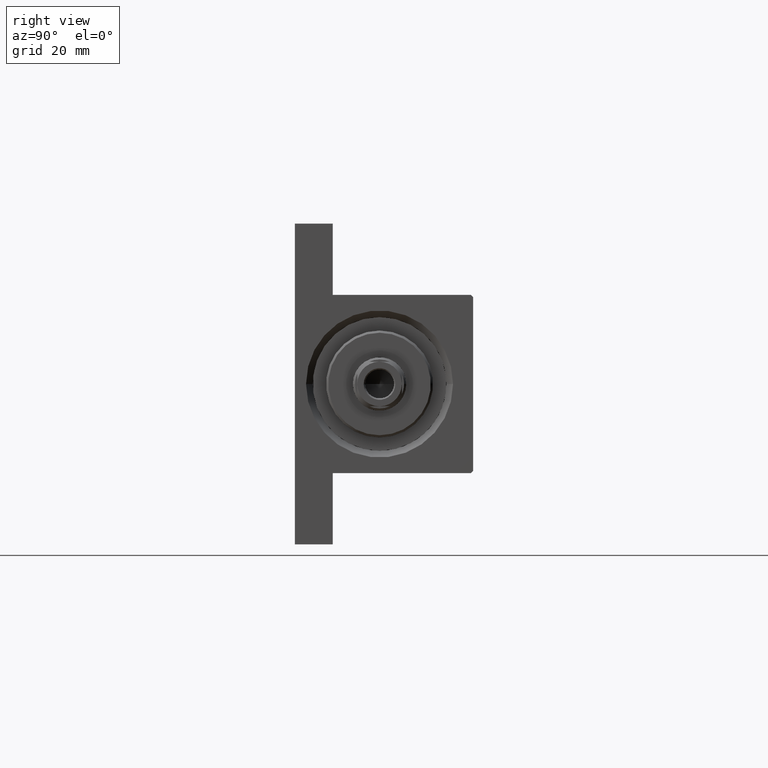
[diagram: clean part render]
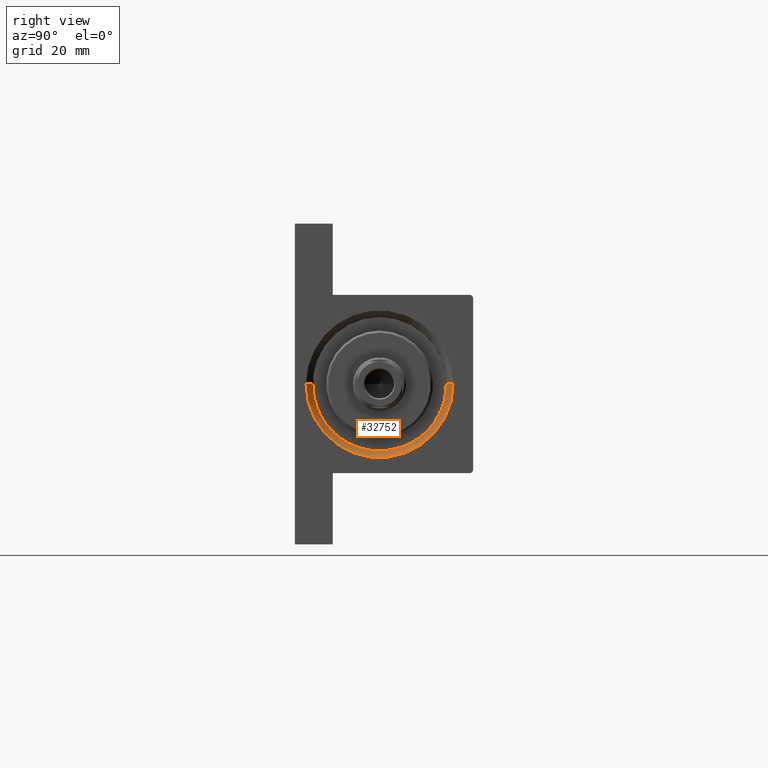
[diagram: same view with one face highlighted and labeled with its STEP entity id]
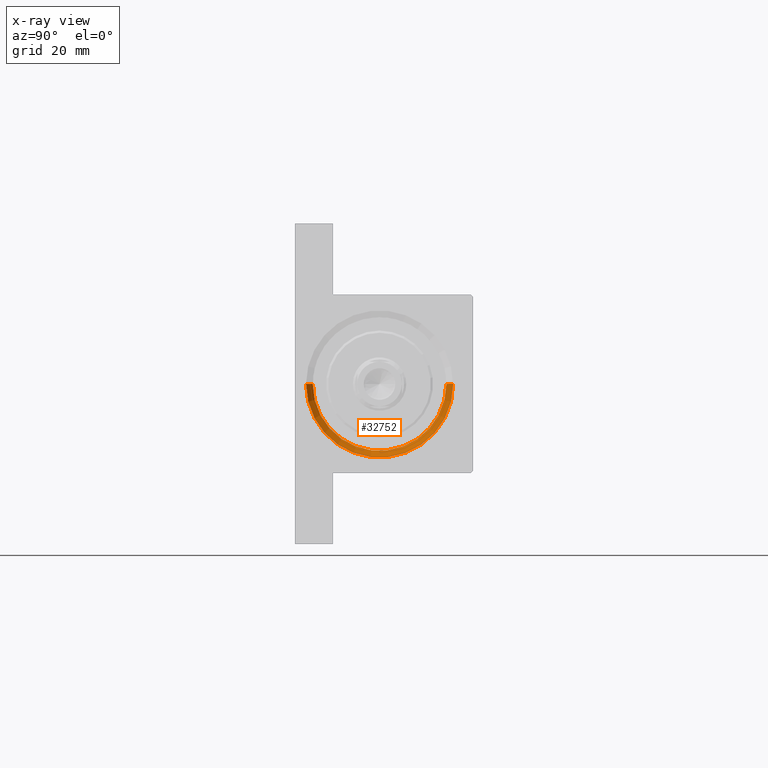
[diagram: x-ray of the same camera — body ghosted, the highlighted face saturated]
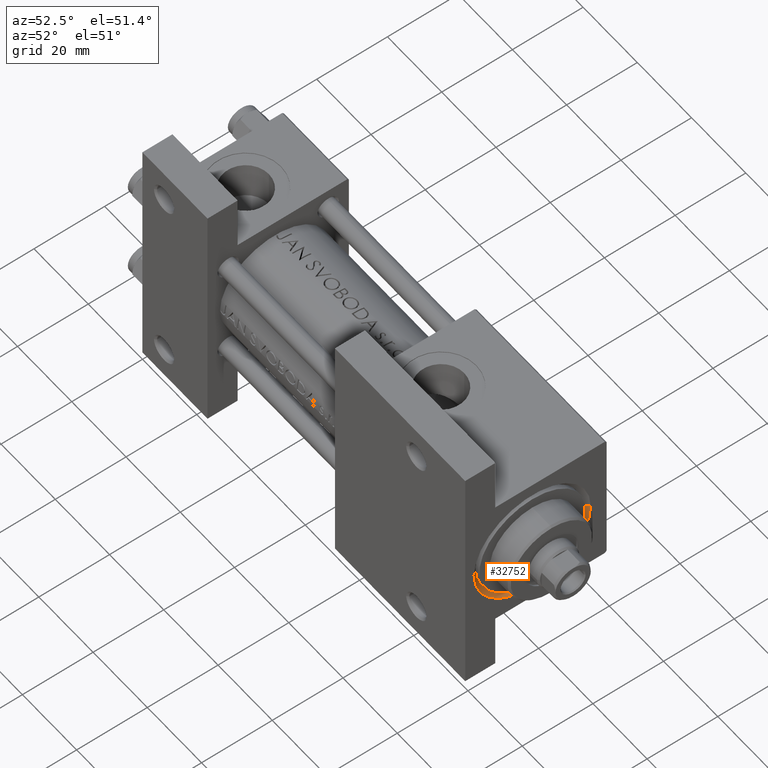
[diagram: same view with one face highlighted and labeled with its STEP entity id]
A machine part, right view. The second image highlights one B-rep face of the part: STEP entity #32752.
The next image is the same camera in x-ray: the body ghosted, the highlighted face saturated — about 0% of this face is hidden behind the body in this view.
A second angle (auxiliary view) of the same face is appended — the face is thin or edge-on in the first view.
In plain terms, the highlighted conical surface has half-angle 45 deg.
Its self-contained STEP definition (entity closure, byte-faithful):
#1738 = CIRCLE ( 'NONE', #18660, 15.00000000000000000 ) ;
#2271 = VECTOR ( 'NONE', #32939, 1000.000000000000114 ) ;
#3576 = CARTESIAN_POINT ( 'NONE',  ( 119.0000000000000142, 0.000000000000000000, -1.000000000000000888 ) ) ;
#6787 = VERTEX_POINT ( 'NONE', #36752 ) ;
#8083 = CARTESIAN_POINT ( 'NONE',  ( 117.5000000000000000, 0.000000000000000000, -1.000000000000000888 ) ) ;
#9092 = EDGE_LOOP ( 'NONE', ( #34508, #41942, #28365, #33973 ) ) ;
#9560 = FACE_OUTER_BOUND ( 'NONE', #9092, .T. ) ;
#12653 = CARTESIAN_POINT ( 'NONE',  ( 119.0000000000000142, 0.000000000000000000, -17.50000000000001421 ) ) ;
#15601 = DIRECTION ( 'NONE',  ( -1.000000000000000000, -0.000000000000000000, -0.000000000000000000 ) ) ;
#16687 = VERTEX_POINT ( 'NONE', #36266 ) ;
#16839 = CIRCLE ( 'NONE', #32916, 16.50000000000001421 ) ;
#17480 = DIRECTION ( 'NONE',  ( 1.000000000000000000, 0.000000000000000000, 0.000000000000000000 ) ) ;
#17710 = DIRECTION ( 'NONE',  ( 0.7071067811865474617, 0.000000000000000000, -0.7071067811865474617 ) ) ;
#18457 = EDGE_CURVE ( 'NONE', #39702, #6787, #1738, .T. ) ;
#18660 = AXIS2_PLACEMENT_3D ( 'NONE', #8083, #22757, #26585 ) ;
#20154 = VERTEX_POINT ( 'NONE', #12653 ) ;
#21545 = CONICAL_SURFACE ( 'NONE', #41440, 15.00000000000000000, 0.7853981633974482790 ) ;
#21910 = LINE ( 'NONE', #26458, #2271 ) ;
#21938 = EDGE_CURVE ( 'NONE', #39702, #20154, #43629, .T. ) ;
#22757 = DIRECTION ( 'NONE',  ( 1.000000000000000000, 0.000000000000000000, 0.000000000000000000 ) ) ;
#25697 = CARTESIAN_POINT ( 'NONE',  ( 117.5000000000000000, 0.000000000000000000, -16.00000000000000000 ) ) ;
#26458 = CARTESIAN_POINT ( 'NONE',  ( 117.5000000000000000, 1.836970198721029589E-15, 13.99999999999999822 ) ) ;
#26585 = DIRECTION ( 'NONE',  ( 0.000000000000000000, 0.000000000000000000, 1.000000000000000000 ) ) ;
#28365 = ORIENTED_EDGE ( 'NONE', *, *, #21938, .T. ) ;
#28480 = EDGE_CURVE ( 'NONE', #16687, #20154, #16839, .T. ) ;
#29735 = EDGE_CURVE ( 'NONE', #6787, #16687, #21910, .T. ) ;
#30244 = DIRECTION ( 'NONE',  ( 0.000000000000000000, 0.000000000000000000, 1.000000000000000000 ) ) ;
#31884 = DIRECTION ( 'NONE',  ( 0.000000000000000000, 0.000000000000000000, -1.000000000000000000 ) ) ;
#32752 = ADVANCED_FACE ( 'NONE', ( #9560 ), #21545, .F. ) ;
#32916 = AXIS2_PLACEMENT_3D ( 'NONE', #3576, #15601, #30244 ) ;
#32939 = DIRECTION ( 'NONE',  ( 0.7071067811865474617, 8.659560562354932858E-17, 0.7071067811865474617 ) ) ;
#33066 = CARTESIAN_POINT ( 'NONE',  ( 117.5000000000000000, 0.000000000000000000, -16.00000000000000000 ) ) ;
#33973 = ORIENTED_EDGE ( 'NONE', *, *, #28480, .F. ) ;
#34508 = ORIENTED_EDGE ( 'NONE', *, *, #29735, .F. ) ;
#36266 = CARTESIAN_POINT ( 'NONE',  ( 119.0000000000000142, 2.020667218593134678E-15, 15.50000000000001421 ) ) ;
#36752 = CARTESIAN_POINT ( 'NONE',  ( 117.5000000000000000, 1.836970198721029589E-15, 13.99999999999999822 ) ) ;
#39702 = VERTEX_POINT ( 'NONE', #25697 ) ;
#41440 = AXIS2_PLACEMENT_3D ( 'NONE', #41976, #17480, #31884 ) ;
#41942 = ORIENTED_EDGE ( 'NONE', *, *, #18457, .F. ) ;
#41976 = CARTESIAN_POINT ( 'NONE',  ( 117.5000000000000000, 0.000000000000000000, -1.000000000000000888 ) ) ;
#43629 = LINE ( 'NONE', #33066, #46391 ) ;
#46391 = VECTOR ( 'NONE', #17710, 1000.000000000000114 ) ;